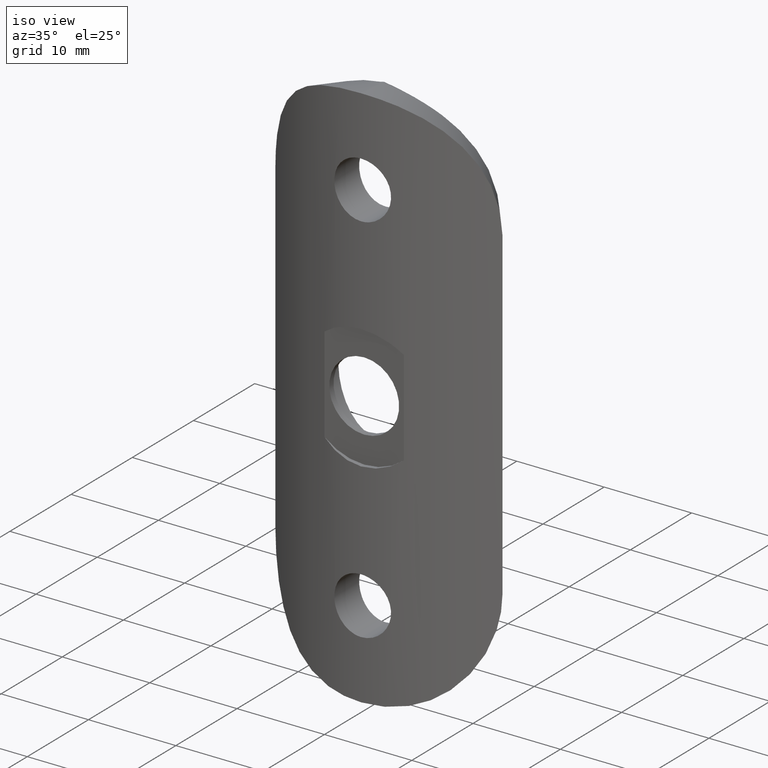
[diagram: clean part render]
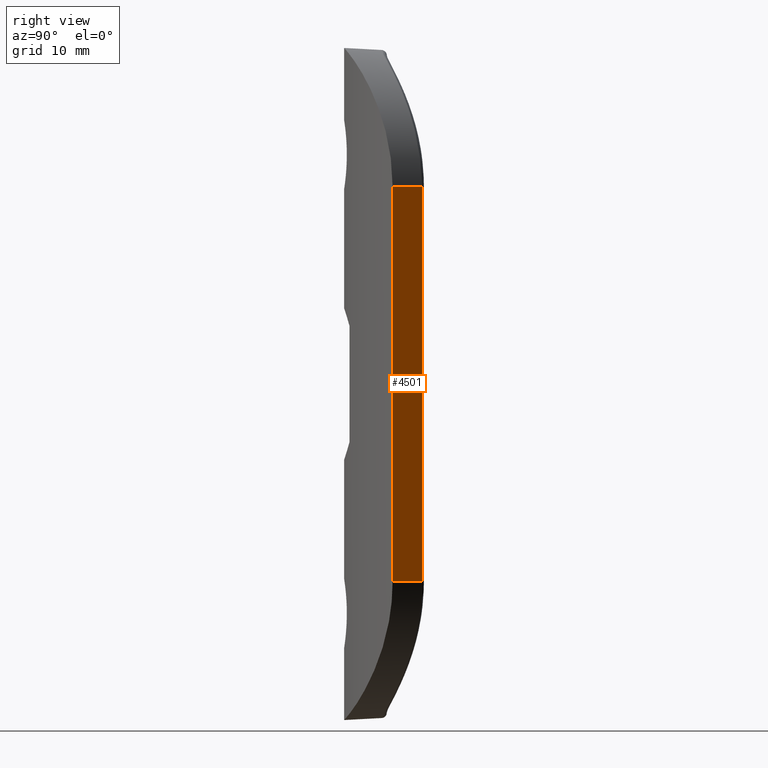
[diagram: tour spotlight — one face highlighted and labeled with its STEP entity id]
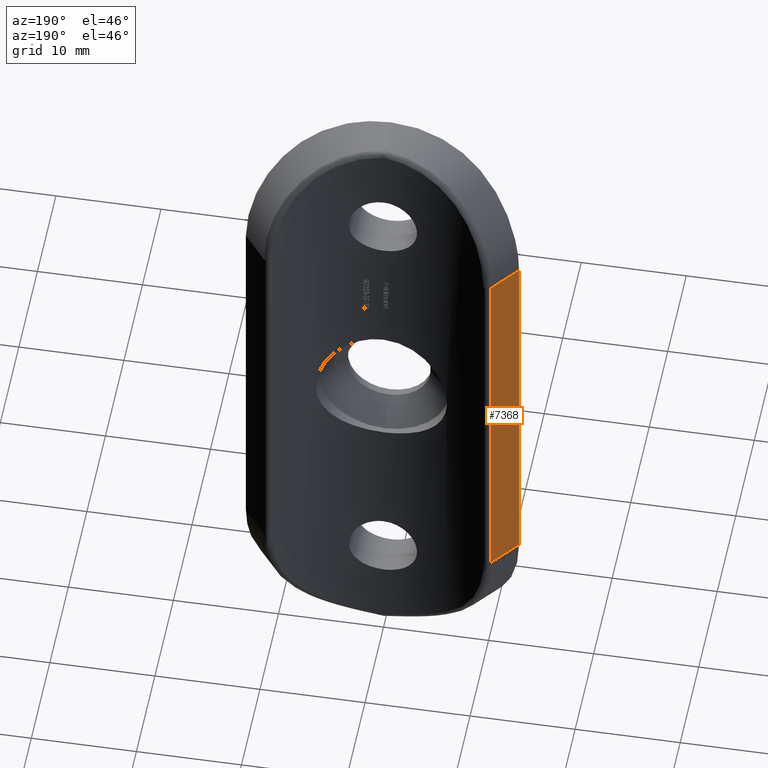
[diagram: tour spotlight — one face highlighted and labeled with its STEP entity id]
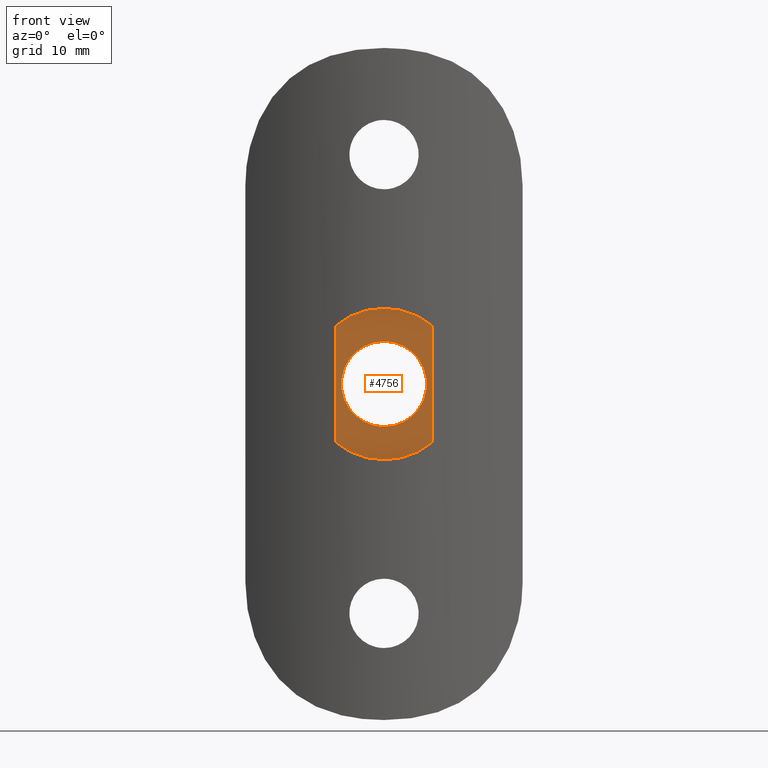
[diagram: tour spotlight — one face highlighted and labeled with its STEP entity id]
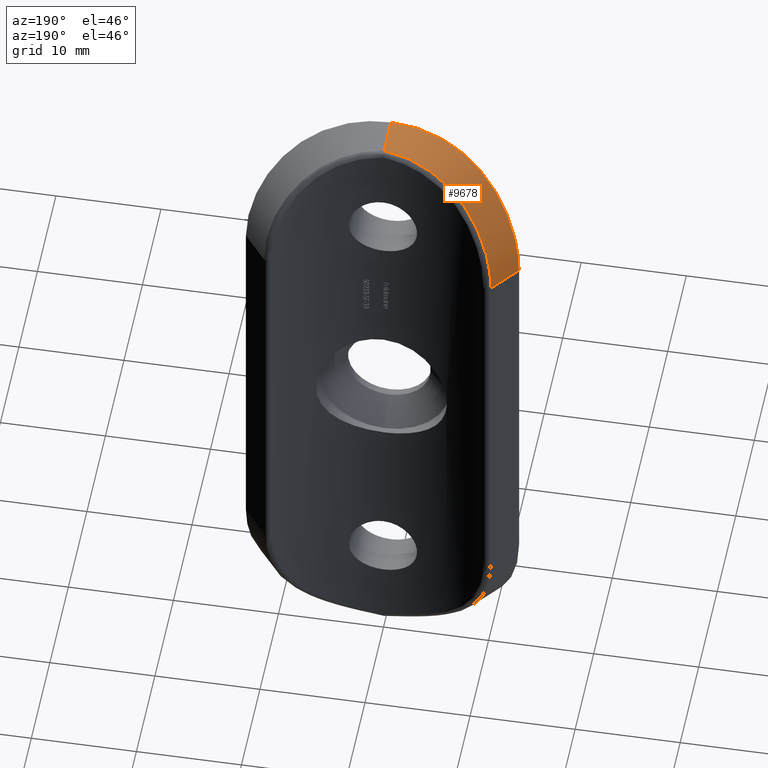
[diagram: tour spotlight — one face highlighted and labeled with its STEP entity id]
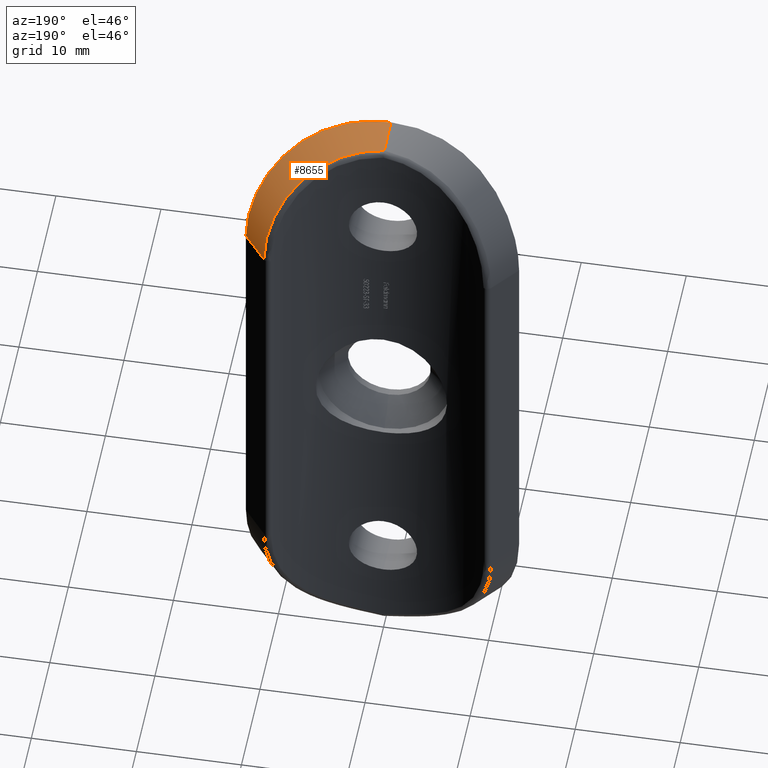
[diagram: tour spotlight — one face highlighted and labeled with its STEP entity id]
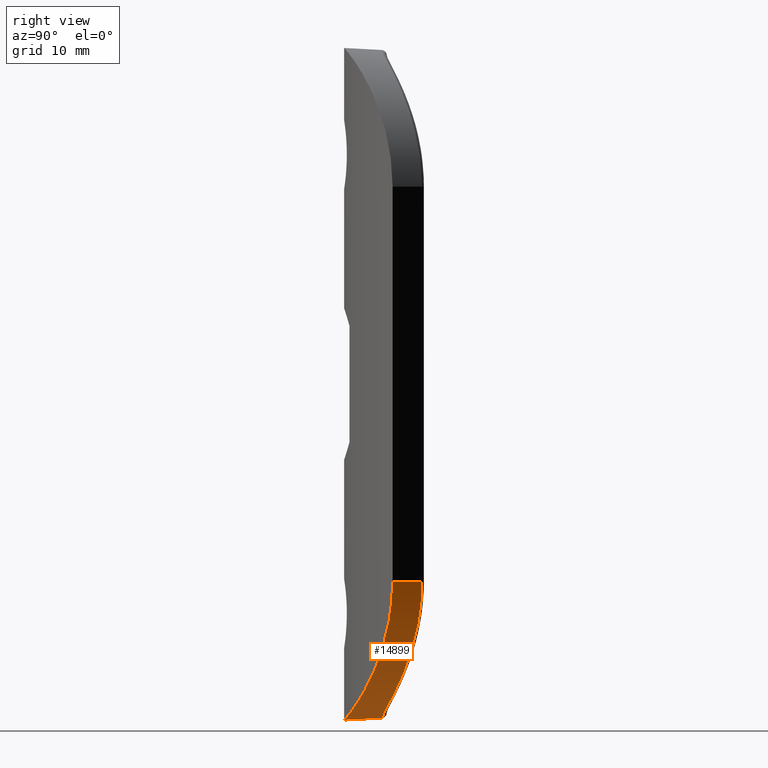
[diagram: tour spotlight — one face highlighted and labeled with its STEP entity id]
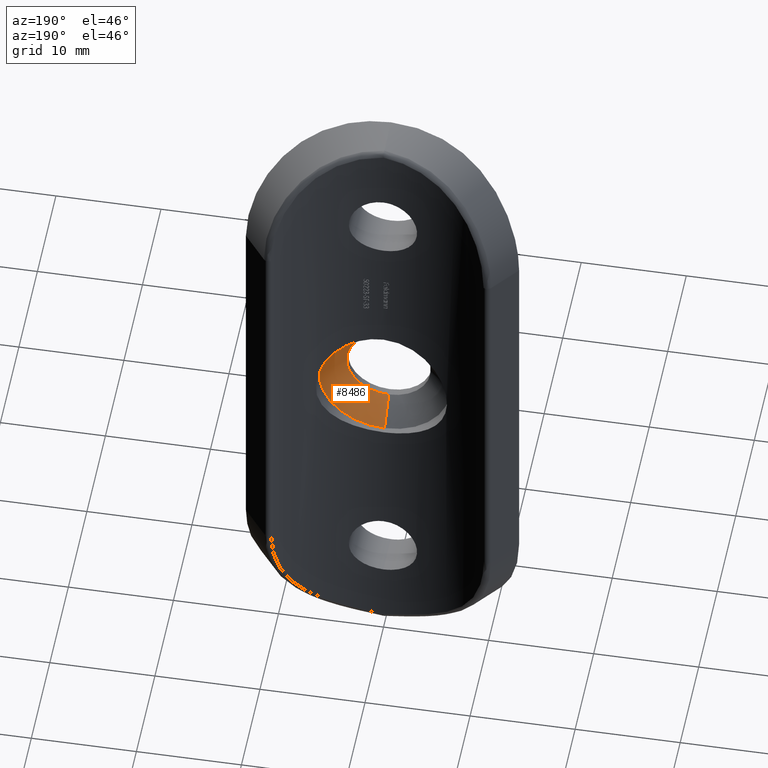
[diagram: tour spotlight — one face highlighted and labeled with its STEP entity id]
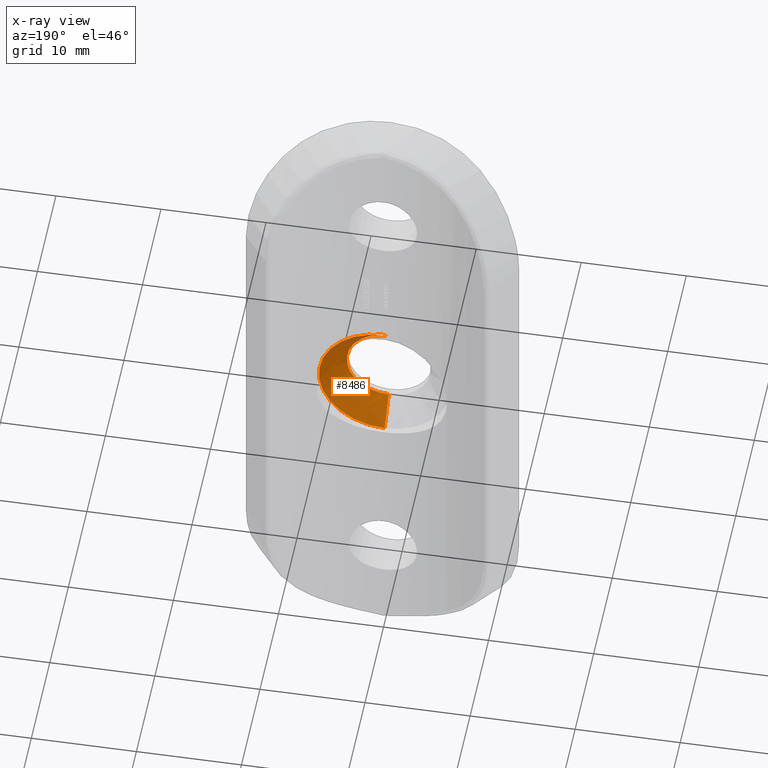
[diagram: x-ray of the same camera — body ghosted, this tour face saturated]
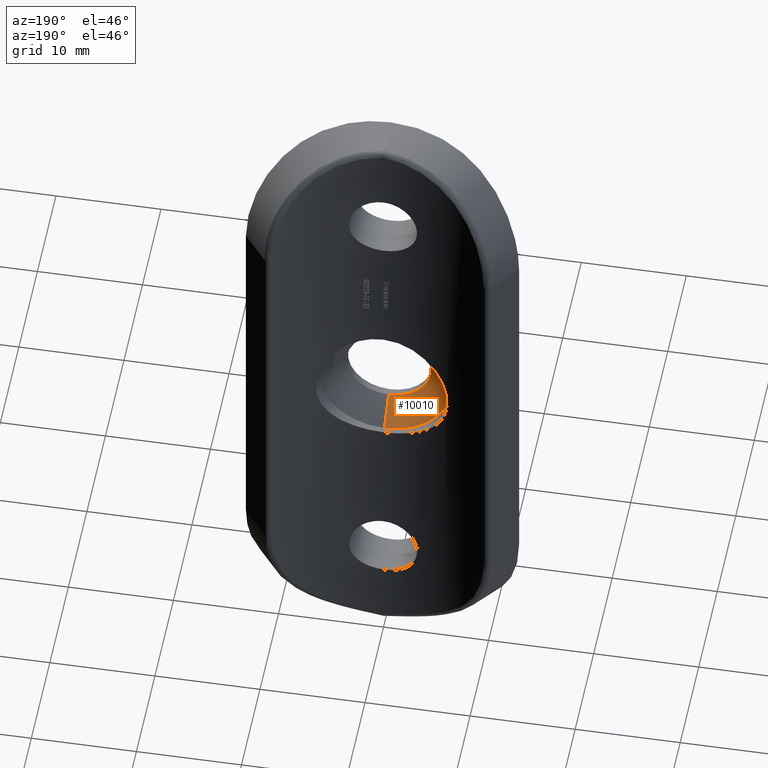
[diagram: tour spotlight — one face highlighted and labeled with its STEP entity id]
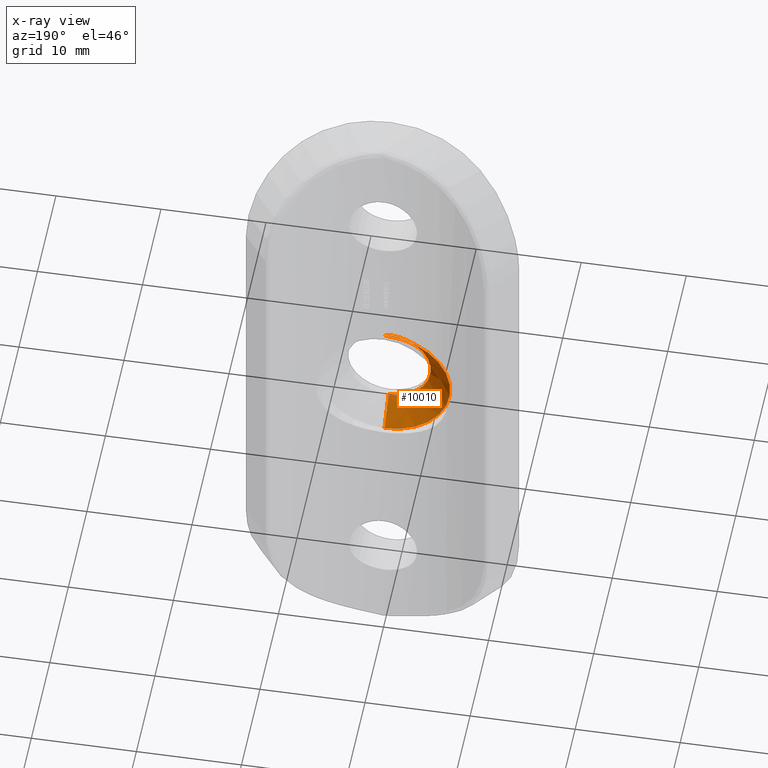
[diagram: x-ray of the same camera — body ghosted, this tour face saturated]
A machine part: a face-by-face anatomy tour. The part has 284 B-rep faces; the first image is the clean iso view, then the 8 largest visible faces are spotlighted one at a time (largest first), each with its STEP entity span.

Face 1 — right view, entity #4501. In plain terms, the highlighted planar face has unit normal (-0.7818, -0.6235, 0).
Definition (entity closure, byte-faithful):
#182 = DIRECTION ( 'NONE',  ( -0.0000000000000000000, -0.0000000000000000000, -1.000000000000000000 ) ) ;
#569 = ORIENTED_EDGE ( 'NONE', *, *, #9685, .T. ) ;
#581 = LINE ( 'NONE', #1220, #13260 ) ;
#1073 = CARTESIAN_POINT ( 'NONE',  ( 12.99999999999999800, 0.5490030979697434500, 18.50000000000000400 ) ) ;
#1220 = CARTESIAN_POINT ( 'NONE',  ( 12.99999999999999800, 0.5490030979697440000, -18.50000000000000400 ) ) ;
#1342 = EDGE_CURVE ( 'NONE', #7192, #10145, #15516, .T. ) ;
#1489 = AXIS2_PLACEMENT_3D ( 'NONE', #2347, #14695, #12166 ) ;
#2347 = CARTESIAN_POINT ( 'NONE',  ( 12.99999999999999800, 0.5490030979697440000, 31.50000000000000000 ) ) ;
#2606 = CARTESIAN_POINT ( 'NONE',  ( 12.99999999999999800, 0.5490030979697440000, 31.50000000000000000 ) ) ;
#3698 = LINE ( 'NONE', #2606, #11003 ) ;
#3941 = EDGE_CURVE ( 'NONE', #10145, #12209, #3698, .T. ) ;
#4122 = VECTOR ( 'NONE', #5332, 1000.000000000000000 ) ;
#4501 = ADVANCED_FACE ( 'NONE', ( #10043 ), #13284, .F. ) ;
#5332 = DIRECTION ( 'NONE',  ( 0.0000000000000000000, 0.0000000000000000000, 1.000000000000000000 ) ) ;
#5682 = EDGE_CURVE ( 'NONE', #12209, #9105, #581, .T. ) ;
#5894 = ORIENTED_EDGE ( 'NONE', *, *, #1342, .T. ) ;
#7192 = VERTEX_POINT ( 'NONE', #10628 ) ;
#9105 = VERTEX_POINT ( 'NONE', #10692 ) ;
#9292 = ORIENTED_EDGE ( 'NONE', *, *, #3941, .T. ) ;
#9684 = EDGE_LOOP ( 'NONE', ( #15234, #569, #5894, #9292 ) ) ;
#9685 = EDGE_CURVE ( 'NONE', #9105, #7192, #11427, .T. ) ;
#10022 = CARTESIAN_POINT ( 'NONE',  ( 12.99999999999999800, 0.5490030979697440000, 18.50000000000000400 ) ) ;
#10043 = FACE_OUTER_BOUND ( 'NONE', #9684, .T. ) ;
#10145 = VERTEX_POINT ( 'NONE', #10022 ) ;
#10628 = CARTESIAN_POINT ( 'NONE',  ( 10.81325278673134900, 3.291015370970933300, 18.50000000000000400 ) ) ;
#10692 = CARTESIAN_POINT ( 'NONE',  ( 10.81325278673134900, 3.291015370970933800, -18.50000000000000400 ) ) ;
#10997 = DIRECTION ( 'NONE',  ( -0.6235011990407680600, 0.7818223933827454000, 0.0000000000000000000 ) ) ;
#11003 = VECTOR ( 'NONE', #182, 1000.000000000000000 ) ;
#11414 = CARTESIAN_POINT ( 'NONE',  ( 10.81325278673134900, 3.291015370970932900, 18.50000000000000400 ) ) ;
#11427 = LINE ( 'NONE', #11414, #4122 ) ;
#12166 = DIRECTION ( 'NONE',  ( 0.6235011990407680600, -0.7818223933827454000, 0.0000000000000000000 ) ) ;
#12209 = VERTEX_POINT ( 'NONE', #13475 ) ;
#13260 = VECTOR ( 'NONE', #10997, 1000.000000000000100 ) ;
#13284 = PLANE ( 'NONE',  #1489 ) ;
#13386 = VECTOR ( 'NONE', #14555, 1000.000000000000100 ) ;
#13475 = CARTESIAN_POINT ( 'NONE',  ( 12.99999999999999800, 0.5490030979697440000, -18.50000000000000400 ) ) ;
#14555 = DIRECTION ( 'NONE',  ( 0.6235011990407680600, -0.7818223933827454000, -0.0000000000000000000 ) ) ;
#14695 = DIRECTION ( 'NONE',  ( -0.7818223933827455100, -0.6235011990407681700, 0.0000000000000000000 ) ) ;
#15234 = ORIENTED_EDGE ( 'NONE', *, *, #5682, .T. ) ;
#15516 = LINE ( 'NONE', #1073, #13386 ) ;

Face 2 — auxiliary view, entity #7368. In plain terms, the highlighted planar face has unit normal (-0.7818, 0.6235, 0).
Definition (entity closure, byte-faithful):
#471 = AXIS2_PLACEMENT_3D ( 'NONE', #14305, #10510, #3146 ) ;
#500 = VERTEX_POINT ( 'NONE', #15882 ) ;
#2212 = EDGE_CURVE ( 'NONE', #13362, #8193, #10725, .T. ) ;
#2842 = ORIENTED_EDGE ( 'NONE', *, *, #3919, .F. ) ;
#2914 = CARTESIAN_POINT ( 'NONE',  ( -13.00000000000000400, 0.5490030979697462200, -18.50000000000000400 ) ) ;
#3146 = DIRECTION ( 'NONE',  ( -0.6235011990407675100, -0.7818223933827459500, 0.0000000000000000000 ) ) ;
#3387 = ORIENTED_EDGE ( 'NONE', *, *, #5304, .T. ) ;
#3487 = VECTOR ( 'NONE', #5169, 1000.000000000000000 ) ;
#3655 = CARTESIAN_POINT ( 'NONE',  ( -12.99999999999999800, 0.5490030979697392300, 18.50000000000000400 ) ) ;
#3806 = VECTOR ( 'NONE', #12178, 1000.000000000000000 ) ;
#3919 = EDGE_CURVE ( 'NONE', #12608, #8193, #4466, .T. ) ;
#4466 = LINE ( 'NONE', #14903, #3487 ) ;
#4568 = EDGE_LOOP ( 'NONE', ( #3387, #12804, #8922, #2842 ) ) ;
#4595 = FACE_OUTER_BOUND ( 'NONE', #4568, .T. ) ;
#4978 = CARTESIAN_POINT ( 'NONE',  ( -13.00000000000000400, 0.5490030979697462200, 18.50000000000000400 ) ) ;
#5169 = DIRECTION ( 'NONE',  ( -0.0000000000000000000, -0.0000000000000000000, -1.000000000000000000 ) ) ;
#5304 = EDGE_CURVE ( 'NONE', #12608, #500, #13835, .T. ) ;
#6523 = VECTOR ( 'NONE', #8701, 1000.000000000000000 ) ;
#7368 = ADVANCED_FACE ( 'NONE', ( #4595 ), #11780, .T. ) ;
#8193 = VERTEX_POINT ( 'NONE', #2914 ) ;
#8586 = CARTESIAN_POINT ( 'NONE',  ( -12.99999999999999500, 0.5490030979697430000, -18.50000000000000400 ) ) ;
#8701 = DIRECTION ( 'NONE',  ( 0.6235011990407675100, 0.7818223933827459500, -0.0000000000000000000 ) ) ;
#8922 = ORIENTED_EDGE ( 'NONE', *, *, #2212, .T. ) ;
#9778 = EDGE_CURVE ( 'NONE', #500, #13362, #11237, .T. ) ;
#10510 = DIRECTION ( 'NONE',  ( -0.7818223933827459500, 0.6235011990407675100, 0.0000000000000000000 ) ) ;
#10725 = LINE ( 'NONE', #8586, #3806 ) ;
#11046 = VECTOR ( 'NONE', #13108, 1000.000000000000000 ) ;
#11237 = LINE ( 'NONE', #13214, #11046 ) ;
#11780 = PLANE ( 'NONE',  #471 ) ;
#12178 = DIRECTION ( 'NONE',  ( -0.6235011990407675100, -0.7818223933827459500, -0.0000000000000000000 ) ) ;
#12608 = VERTEX_POINT ( 'NONE', #4978 ) ;
#12804 = ORIENTED_EDGE ( 'NONE', *, *, #9778, .T. ) ;
#13108 = DIRECTION ( 'NONE',  ( 0.0000000000000000000, 0.0000000000000000000, -1.000000000000000000 ) ) ;
#13214 = CARTESIAN_POINT ( 'NONE',  ( -10.81325278673135100, 3.291015370970932000, 31.50000000000000000 ) ) ;
#13362 = VERTEX_POINT ( 'NONE', #13709 ) ;
#13709 = CARTESIAN_POINT ( 'NONE',  ( -10.81325278673134900, 3.291015370970931600, -18.50000000000000400 ) ) ;
#13835 = LINE ( 'NONE', #3655, #6523 ) ;
#14305 = CARTESIAN_POINT ( 'NONE',  ( -12.99999999999999800, 0.5490030979697392300, 31.50000000000000000 ) ) ;
#14903 = CARTESIAN_POINT ( 'NONE',  ( -13.00000000000000400, 0.5490030979697462200, 31.50000000000000000 ) ) ;
#15882 = CARTESIAN_POINT ( 'NONE',  ( -10.81325278673135100, 3.291015370970932000, 18.50000000000000400 ) ) ;

Face 3 — front view, entity #4756. In plain terms, the highlighted planar face has unit normal (0, 1, 0).
Definition (entity closure, byte-faithful):
#129 = EDGE_LOOP ( 'NONE', ( #10712, #13571, #9495, #447, #5036 ) ) ;
#447 = ORIENTED_EDGE ( 'NONE', *, *, #3337, .T. ) ;
#616 = CARTESIAN_POINT ( 'NONE',  ( 4.538722287164086200, -3.500000000000000000, -5.459853477887480500 ) ) ;
#773 = CARTESIAN_POINT ( 'NONE',  ( 4.898587196589411800E-016, -3.500000000000000400, 3.999999999999999100 ) ) ;
#944 = DIRECTION ( 'NONE',  ( -0.0000000000000000000, -1.000000000000000000, -0.0000000000000000000 ) ) ;
#970 = AXIS2_PLACEMENT_3D ( 'NONE', #10508, #3144, #11731 ) ;
#1493 = CARTESIAN_POINT ( 'NONE',  ( 4.538722287164086200, -3.499999999999999600, 31.50000000000000000 ) ) ;
#1517 = CIRCLE ( 'NONE', #3262, 3.999999999999999100 ) ;
#1815 = AXIS2_PLACEMENT_3D ( 'NONE', #12952, #8064, #13063 ) ;
#1904 = PLANE ( 'NONE',  #970 ) ;
#2177 = VERTEX_POINT ( 'NONE', #14851 ) ;
#2353 = ORIENTED_EDGE ( 'NONE', *, *, #7320, .F. ) ;
#2693 = CARTESIAN_POINT ( 'NONE',  ( 0.0000000000000000000, -3.500000000000000000, -7.100000000000000500 ) ) ;
#2857 = VECTOR ( 'NONE', #10748, 1000.000000000000000 ) ;
#3144 = DIRECTION ( 'NONE',  ( 0.0000000000000000000, 1.000000000000000000, 0.0000000000000000000 ) ) ;
#3262 = AXIS2_PLACEMENT_3D ( 'NONE', #15238, #9069, #8952 ) ;
#3337 = EDGE_CURVE ( 'NONE', #14454, #11517, #14345, .T. ) ;
#3435 = EDGE_LOOP ( 'NONE', ( #13124, #2353 ) ) ;
#3488 = DIRECTION ( 'NONE',  ( 0.0000000000000000000, 0.0000000000000000000, -1.000000000000000000 ) ) ;
#3695 = VERTEX_POINT ( 'NONE', #773 ) ;
#4124 = DIRECTION ( 'NONE',  ( -0.0000000000000000000, -0.0000000000000000000, -1.000000000000000000 ) ) ;
#4614 = DIRECTION ( 'NONE',  ( 0.0000000000000000000, 0.0000000000000000000, -1.000000000000000000 ) ) ;
#4746 = VERTEX_POINT ( 'NONE', #15282 ) ;
#4756 = ADVANCED_FACE ( 'NONE', ( #13070, #9834 ), #1904, .F. ) ;
#5036 = ORIENTED_EDGE ( 'NONE', *, *, #5435, .F. ) ;
#5435 = EDGE_CURVE ( 'NONE', #14832, #11517, #6902, .T. ) ;
#5524 = LINE ( 'NONE', #12077, #2857 ) ;
#5583 = EDGE_CURVE ( 'NONE', #4746, #14454, #11730, .T. ) ;
#5758 = CARTESIAN_POINT ( 'NONE',  ( 0.0000000000000000000, -3.500000000000000000, 0.0000000000000000000 ) ) ;
#5827 = DIRECTION ( 'NONE',  ( -0.0000000000000000000, -1.000000000000000000, -0.0000000000000000000 ) ) ;
#6902 = LINE ( 'NONE', #1493, #7090 ) ;
#7059 = AXIS2_PLACEMENT_3D ( 'NONE', #8291, #11896, #9490 ) ;
#7090 = VECTOR ( 'NONE', #4124, 1000.000000000000000 ) ;
#7320 = EDGE_CURVE ( 'NONE', #3695, #12240, #1517, .T. ) ;
#7426 = EDGE_CURVE ( 'NONE', #12240, #3695, #8031, .T. ) ;
#8031 = CIRCLE ( 'NONE', #1815, 3.999999999999999100 ) ;
#8064 = DIRECTION ( 'NONE',  ( -0.0000000000000000000, -1.000000000000000000, -0.0000000000000000000 ) ) ;
#8280 = AXIS2_PLACEMENT_3D ( 'NONE', #5758, #944, #4614 ) ;
#8291 = CARTESIAN_POINT ( 'NONE',  ( 0.0000000000000000000, -3.500000000000000000, 0.0000000000000000000 ) ) ;
#8419 = CARTESIAN_POINT ( 'NONE',  ( 0.0000000000000000000, -3.500000000000000000, 0.0000000000000000000 ) ) ;
#8544 = CARTESIAN_POINT ( 'NONE',  ( 0.0000000000000000000, -3.500000000000000400, -3.999999999999999100 ) ) ;
#8952 = DIRECTION ( 'NONE',  ( 0.0000000000000000000, 0.0000000000000000000, -1.000000000000000000 ) ) ;
#8972 = EDGE_CURVE ( 'NONE', #4746, #2177, #5524, .T. ) ;
#9069 = DIRECTION ( 'NONE',  ( -0.0000000000000000000, -1.000000000000000000, -0.0000000000000000000 ) ) ;
#9490 = DIRECTION ( 'NONE',  ( 0.0000000000000000000, 0.0000000000000000000, -1.000000000000000000 ) ) ;
#9495 = ORIENTED_EDGE ( 'NONE', *, *, #5583, .T. ) ;
#9834 = FACE_OUTER_BOUND ( 'NONE', #129, .T. ) ;
#10508 = CARTESIAN_POINT ( 'NONE',  ( 0.0000000000000000000, -3.500000000000000400, -4.896396907999052200E-016 ) ) ;
#10712 = ORIENTED_EDGE ( 'NONE', *, *, #11647, .T. ) ;
#10748 = DIRECTION ( 'NONE',  ( 0.0000000000000000000, 0.0000000000000000000, 1.000000000000000000 ) ) ;
#11517 = VERTEX_POINT ( 'NONE', #616 ) ;
#11647 = EDGE_CURVE ( 'NONE', #14832, #2177, #13027, .T. ) ;
#11730 = CIRCLE ( 'NONE', #8280, 7.100000000000000500 ) ;
#11731 = DIRECTION ( 'NONE',  ( 0.0000000000000000000, -0.0000000000000000000, 1.000000000000000000 ) ) ;
#11896 = DIRECTION ( 'NONE',  ( -0.0000000000000000000, -1.000000000000000000, -0.0000000000000000000 ) ) ;
#12077 = CARTESIAN_POINT ( 'NONE',  ( -4.538722287164089800, -3.499999999999999600, 31.50000000000000000 ) ) ;
#12240 = VERTEX_POINT ( 'NONE', #8544 ) ;
#12952 = CARTESIAN_POINT ( 'NONE',  ( 0.0000000000000000000, -3.500000000000000400, 0.0000000000000000000 ) ) ;
#13027 = CIRCLE ( 'NONE', #7059, 7.100000000000000500 ) ;
#13063 = DIRECTION ( 'NONE',  ( 0.0000000000000000000, 0.0000000000000000000, -1.000000000000000000 ) ) ;
#13070 = FACE_BOUND ( 'NONE', #3435, .T. ) ;
#13124 = ORIENTED_EDGE ( 'NONE', *, *, #7426, .F. ) ;
#13571 = ORIENTED_EDGE ( 'NONE', *, *, #8972, .F. ) ;
#14345 = CIRCLE ( 'NONE', #14986, 7.100000000000000500 ) ;
#14454 = VERTEX_POINT ( 'NONE', #2693 ) ;
#14832 = VERTEX_POINT ( 'NONE', #15833 ) ;
#14851 = CARTESIAN_POINT ( 'NONE',  ( -4.538722287164089800, -3.500000000000000000, 5.459853477887477900 ) ) ;
#14986 = AXIS2_PLACEMENT_3D ( 'NONE', #8419, #5827, #3488 ) ;
#15238 = CARTESIAN_POINT ( 'NONE',  ( 0.0000000000000000000, -3.500000000000000400, 0.0000000000000000000 ) ) ;
#15282 = CARTESIAN_POINT ( 'NONE',  ( -4.538722287164089800, -3.500000000000000000, -5.459853477887477900 ) ) ;
#15833 = CARTESIAN_POINT ( 'NONE',  ( 4.538722287164086200, -3.500000000000000000, 5.459853477887480500 ) ) ;

Face 4 — auxiliary view, entity #9678. In plain terms, the highlighted cylindrical surface (partial cylindrical patch) has radius 13 mm, axis along (0.6235, 0.7818, -0).
Definition (entity closure, byte-faithful):
#105 = CARTESIAN_POINT ( 'NONE',  ( -4.385795527101139500, -3.538186985999252100, 30.96376055406732400 ) ) ;
#217 = CARTESIAN_POINT ( 'NONE',  ( -8.233914946018360900, -2.308684805869031000, 29.13305792003740900 ) ) ;
#358 = CARTESIAN_POINT ( 'NONE',  ( -1.591876104860657600E-015, -2.808314965960470900, 31.50000000000000700 ) ) ;
#500 = VERTEX_POINT ( 'NONE', #15882 ) ;
#1026 = CARTESIAN_POINT ( 'NONE',  ( -7.522032440449962100, 1.297400226740585700, 27.73417490612284900 ) ) ;
#1451 = CARTESIAN_POINT ( 'NONE',  ( -12.40799003955487700, 0.09343085567044492900, 22.86586192898707600 ) ) ;
#1558 = CARTESIAN_POINT ( 'NONE',  ( -7.063075658817594100E-015, -4.000000000000000000, 31.50000000000000000 ) ) ;
#2156 = CARTESIAN_POINT ( 'NONE',  ( -10.51140021667998600, 3.068001273967808200, 21.62516512265614900 ) ) ;
#2209 = CARTESIAN_POINT ( 'NONE',  ( -0.7868395231680609400, -0.4217079465087668100, 31.18895971245693100 ) ) ;
#2320 = CARTESIAN_POINT ( 'NONE',  ( -6.112986192635482900, 0.7093041458289913700, 28.96982297826615100 ) ) ;
#2594 = CARTESIAN_POINT ( 'NONE',  ( -8.891556378372593300, -2.012470251775695800, 28.60455263522121400 ) ) ;
#2644 = CARTESIAN_POINT ( 'NONE',  ( -9.786876122053366000, -1.563244096240058200, 27.72428910285795900 ) ) ;
#2755 = CARTESIAN_POINT ( 'NONE',  ( -13.00000000000000000, 0.5490030979697394500, 19.40065990040951500 ) ) ;
#3507 = CARTESIAN_POINT ( 'NONE',  ( -10.75540627910053200, 3.246948536607695300, 20.08203606642703300 ) ) ;
#3655 = CARTESIAN_POINT ( 'NONE',  ( -12.99999999999999800, 0.5490030979697392300, 18.50000000000000400 ) ) ;
#3694 = CARTESIAN_POINT ( 'NONE',  ( -2.836308886024300000, -7.556512489560237400, 18.50000000000000400 ) ) ;
#3765 = CARTESIAN_POINT ( 'NONE',  ( -7.063075658817594100E-015, -4.000000000000000000, 31.50000000000000000 ) ) ;
#3880 = ORIENTED_EDGE ( 'NONE', *, *, #12269, .F. ) ;
#3933 = CARTESIAN_POINT ( 'NONE',  ( -12.71381069657483900, 0.3245745940752577400, 21.58540070414690600 ) ) ;
#3984 = CARTESIAN_POINT ( 'NONE',  ( -13.00000000000000400, 0.5490030979697462200, 18.50000000000000400 ) ) ;
#4172 = EDGE_CURVE ( 'NONE', #7157, #500, #4354, .T. ) ;
#4354 = B_SPLINE_CURVE_WITH_KNOTS ( 'NONE', 3,
 ( #11935, #15766, #2209, #9476, #11982, #5893, #10865, #7016, #13102, #14505, #2320, #4642, #1026, #8371, #5948, #9691, #9633, #14455, #4590, #7069, #12091, #2156, #13207, #3507, #14404, #15653 ),
 .UNSPECIFIED., .F., .F.,
 ( 4, 2, 2, 2, 2, 2, 2, 2, 2, 2, 2, 2, 4 ),
 ( 2.845133323627126100E-019, 0.001192473253158539800, 0.002384946506317079600, 0.004769893012634158400, 0.005962366265792695300, 0.007154839518951230600, 0.009539786025268301100, 0.01073225927842683300, 0.01192473253158536500, 0.01430967903790242000, 0.01550215229106094300, 0.01669462554421946600, 0.01907957205053651900 ),
 .UNSPECIFIED. ) ;
#4536 = B_SPLINE_CURVE_WITH_KNOTS ( 'NONE', 3,
 ( #1558, #11290, #14944, #13738, #5054, #105, #10118, #14839, #13642, #12562, #217, #2594, #8823, #2644, #7550, #14999, #12352, #8715, #6267, #6422, #1451, #10069, #3933, #10019, #2755, #3984 ),
 .UNSPECIFIED., .F., .F.,
 ( 4, 2, 2, 2, 2, 2, 2, 2, 2, 2, 2, 2, 4 ),
 ( 1.359853819285665600E-017, 0.002665498496543532100, 0.003998247744815293600, 0.005330996993087053700, 0.007996495489630575000, 0.009329244737902336900, 0.01066199398617409900, 0.01199474323444586100, 0.01332749248271762100, 0.01599299097926114600, 0.01732574022753291900, 0.01865848947580468400, 0.02132398797234821100 ),
 .UNSPECIFIED. ) ;
#4590 = CARTESIAN_POINT ( 'NONE',  ( -9.883876483705217100, 2.631715138342525700, 23.87722691772919200 ) ) ;
#4642 = CARTESIAN_POINT ( 'NONE',  ( -6.993355885137084700, 1.055335429611858900, 28.26161717247504500 ) ) ;
#4978 = CARTESIAN_POINT ( 'NONE',  ( -13.00000000000000400, 0.5490030979697462200, 18.50000000000000400 ) ) ;
#5054 = CARTESIAN_POINT ( 'NONE',  ( -3.527898760406122900, -3.704009373305601600, 31.16888347598757000 ) ) ;
#5304 = EDGE_CURVE ( 'NONE', #12608, #500, #13835, .T. ) ;
#5893 = CARTESIAN_POINT ( 'NONE',  ( -3.081347760467123600, -0.1503958083531978000, 30.59770263791105900 ) ) ;
#5948 = CARTESIAN_POINT ( 'NONE',  ( -8.459104589948713800, 1.777631885677609200, 26.54932674287762900 ) ) ;
#5982 =( BOUNDED_CURVE ( )  B_SPLINE_CURVE ( 3, ( #12595, #358, #11481, #10262 ),
 .UNSPECIFIED., .F., .F. ) 
 B_SPLINE_CURVE_WITH_KNOTS ( ( 4, 4 ),
 ( 4.712388980384689700, 4.883644841163514300 ),
 .UNSPECIFIED. ) 
 CURVE ( )  GEOMETRIC_REPRESENTATION_ITEM ( )  RATIONAL_B_SPLINE_CURVE ( ( 1.000000000000000000, 0.9975574454895068700, 0.9975574454895068700, 1.000000000000000000 ) ) 
 REPRESENTATION_ITEM ( '' )  );
#6267 = CARTESIAN_POINT ( 'NONE',  ( -11.84275810155620900, -0.3139149183250962100, 24.51925199788497900 ) ) ;
#6422 = CARTESIAN_POINT ( 'NONE',  ( -12.27984362872066800, -0.001113884489595342900, 23.28916457201297500 ) ) ;
#6523 = VECTOR ( 'NONE', #8701, 1000.000000000000000 ) ;
#7016 = CARTESIAN_POINT ( 'NONE',  ( -4.825879269697544800, 0.2807642902636742800, 29.79759421073650600 ) ) ;
#7069 = CARTESIAN_POINT ( 'NONE',  ( -10.23505599943294300, 2.871902928979813000, 22.76566226678346900 ) ) ;
#7157 = VERTEX_POINT ( 'NONE', #11910 ) ;
#7550 = CARTESIAN_POINT ( 'NONE',  ( -10.06190585867899200, -1.413865923257870100, 27.40758551223913400 ) ) ;
#7792 = DIRECTION ( 'NONE',  ( 0.6235011990407675100, 0.7818223933827459500, -0.0000000000000000000 ) ) ;
#8328 = FACE_OUTER_BOUND ( 'NONE', #15871, .T. ) ;
#8371 = CARTESIAN_POINT ( 'NONE',  ( -8.234141121959526200, 1.657444517457095100, 26.85767709123361200 ) ) ;
#8701 = DIRECTION ( 'NONE',  ( 0.6235011990407675100, 0.7818223933827459500, -0.0000000000000000000 ) ) ;
#8715 = CARTESIAN_POINT ( 'NONE',  ( -11.48104205251211600, -0.5620101394519403400, 25.29319581707268900 ) ) ;
#8823 = CARTESIAN_POINT ( 'NONE',  ( -9.201700468806528500, -1.862541539259263000, 28.32277410812674000 ) ) ;
#9476 = CARTESIAN_POINT ( 'NONE',  ( -1.562607954736173100, -0.3590787525489972400, 31.02669542825151800 ) ) ;
#9633 = CARTESIAN_POINT ( 'NONE',  ( -9.065984262955375100, 2.121253853727200300, 25.58827309608811600 ) ) ;
#9678 = ADVANCED_FACE ( 'NONE', ( #8328 ), #11989, .T. ) ;
#9691 = CARTESIAN_POINT ( 'NONE',  ( -8.874810467235942500, 2.009469455502230800, 25.91466500015651400 ) ) ;
#10019 = CARTESIAN_POINT ( 'NONE',  ( -12.92797526336122800, 0.4908244495508090600, 20.28429128531304200 ) ) ;
#10069 = CARTESIAN_POINT ( 'NONE',  ( -12.62452858097529800, 0.2559617808524896100, 22.01501381968778800 ) ) ;
#10118 = CARTESIAN_POINT ( 'NONE',  ( -4.808879816216545100, -3.442244404435216100, 30.84088086085273900 ) ) ;
#10206 = DIRECTION ( 'NONE',  ( -0.7818223933827460600, 0.6235011990407675100, 0.0000000000000000000 ) ) ;
#10262 = CARTESIAN_POINT ( 'NONE',  ( -2.597937439898376000E-015, -0.4467435717366383700, 31.30982976342494000 ) ) ;
#10791 = AXIS2_PLACEMENT_3D ( 'NONE', #3694, #7792, #10206 ) ;
#10865 = CARTESIAN_POINT ( 'NONE',  ( -3.801099899317010900, 0.002709856565700170800, 30.31731089620751300 ) ) ;
#10996 = ORIENTED_EDGE ( 'NONE', *, *, #5304, .F. ) ;
#11238 = EDGE_CURVE ( 'NONE', #14383, #7157, #5982, .T. ) ;
#11290 = CARTESIAN_POINT ( 'NONE',  ( -0.8994894225556405700, -3.999999999999999100, 31.50000000000000700 ) ) ;
#11481 = CARTESIAN_POINT ( 'NONE',  ( -2.097690005355738400E-015, -1.620996065403401000, 31.43645470830279400 ) ) ;
#11688 = ORIENTED_EDGE ( 'NONE', *, *, #11238, .T. ) ;
#11910 = CARTESIAN_POINT ( 'NONE',  ( -2.597937439898376000E-015, -0.4467435717366383700, 31.30982976342494000 ) ) ;
#11935 = CARTESIAN_POINT ( 'NONE',  ( -2.597937439898376000E-015, -0.4467435717366383700, 31.30982976342494000 ) ) ;
#11982 = CARTESIAN_POINT ( 'NONE',  ( -1.948181270716177900, -0.3152336200101892300, 30.93077029224297500 ) ) ;
#11989 = CYLINDRICAL_SURFACE ( 'NONE', #10791, 13.00000000000000000 ) ;
#12091 = CARTESIAN_POINT ( 'NONE',  ( -10.33766963107329700, 2.944024006175847600, 22.38621379679843700 ) ) ;
#12269 = EDGE_CURVE ( 'NONE', #14383, #12608, #4536, .T. ) ;
#12352 = CARTESIAN_POINT ( 'NONE',  ( -10.81994887173729200, -0.9746651396309035100, 26.38466664456145200 ) ) ;
#12407 = ORIENTED_EDGE ( 'NONE', *, *, #4172, .T. ) ;
#12562 = CARTESIAN_POINT ( 'NONE',  ( -7.884269990551422900, -2.455700170826961700, 29.38083181686783300 ) ) ;
#12595 = CARTESIAN_POINT ( 'NONE',  ( -7.063075658817594100E-015, -4.000000000000000000, 31.50000000000000000 ) ) ;
#12608 = VERTEX_POINT ( 'NONE', #4978 ) ;
#13102 = CARTESIAN_POINT ( 'NONE',  ( -5.158307885413866400, 0.3815381655267475700, 29.60779361770762100 ) ) ;
#13207 = CARTESIAN_POINT ( 'NONE',  ( -10.58318446594495500, 3.120313476255776900, 21.24161290630414800 ) ) ;
#13642 = CARTESIAN_POINT ( 'NONE',  ( -6.803295188096638100, -2.873964207601184200, 30.05386606140802300 ) ) ;
#13738 = CARTESIAN_POINT ( 'NONE',  ( -3.095138953090901300, -3.773678690184442400, 31.25096211381765000 ) ) ;
#13835 = LINE ( 'NONE', #3655, #6523 ) ;
#14383 = VERTEX_POINT ( 'NONE', #3765 ) ;
#14404 = CARTESIAN_POINT ( 'NONE',  ( -10.81325278673134700, 3.291015370970928000, 19.29716980078726600 ) ) ;
#14455 = CARTESIAN_POINT ( 'NONE',  ( -9.593368464452533200, 2.440443406201452600, 24.58266391671368500 ) ) ;
#14505 = CARTESIAN_POINT ( 'NONE',  ( -5.804277073753969100, 0.5966063912151944300, 29.19240259793340200 ) ) ;
#14839 = CARTESIAN_POINT ( 'NONE',  ( -6.034341321828060600, -3.125516439788664800, 30.41530755885264300 ) ) ;
#14944 = CARTESIAN_POINT ( 'NONE',  ( -1.786227388186503200, -3.941967755297396200, 31.44332252597126100 ) ) ;
#14999 = CARTESIAN_POINT ( 'NONE',  ( -10.57815397570245600, -1.119791496786739100, 26.73848721398386600 ) ) ;
#15653 = CARTESIAN_POINT ( 'NONE',  ( -10.81325278673135100, 3.291015370970932000, 18.50000000000000400 ) ) ;
#15766 = CARTESIAN_POINT ( 'NONE',  ( -0.3951719370108162700, -0.4407258731421472800, 31.25574721689305200 ) ) ;
#15871 = EDGE_LOOP ( 'NONE', ( #11688, #12407, #10996, #3880 ) ) ;
#15882 = CARTESIAN_POINT ( 'NONE',  ( -10.81325278673135100, 3.291015370970932000, 18.50000000000000400 ) ) ;

Face 5 — auxiliary view, entity #8655. In plain terms, the highlighted cylindrical surface (partial cylindrical patch) has radius 13 mm, axis along (0.6235, -0.7818, 0).
Definition (entity closure, byte-faithful):
#317 = CARTESIAN_POINT ( 'NONE',  ( 8.234141121959519100, 1.657444517457094000, 26.85767709123360800 ) ) ;
#358 = CARTESIAN_POINT ( 'NONE',  ( -1.591876104860657600E-015, -2.808314965960470900, 31.50000000000000700 ) ) ;
#384 = CARTESIAN_POINT ( 'NONE',  ( 0.8995211615377171100, -4.000000000000000000, 31.49999999999999300 ) ) ;
#538 = CYLINDRICAL_SURFACE ( 'NONE', #13120, 13.00000000000000000 ) ;
#544 = CARTESIAN_POINT ( 'NONE',  ( 11.84133742178742400, -0.3148745535422774500, 24.52201016392537600 ) ) ;
#1073 = CARTESIAN_POINT ( 'NONE',  ( 12.99999999999999800, 0.5490030979697434500, 18.50000000000000400 ) ) ;
#1080 = CARTESIAN_POINT ( 'NONE',  ( 10.75540627910053000, 3.246948536607697600, 20.08203606642702300 ) ) ;
#1147 = CARTESIAN_POINT ( 'NONE',  ( 10.33766963107329500, 2.944024006175849800, 22.38621379679843300 ) ) ;
#1342 = EDGE_CURVE ( 'NONE', #7192, #10145, #15516, .T. ) ;
#1367 = CARTESIAN_POINT ( 'NONE',  ( -10.16369111397571100, 8.744484412470001200, 18.50000000000000400 ) ) ;
#1509 = CARTESIAN_POINT ( 'NONE',  ( 3.801099899317005500, 0.002709856565700047200, 30.31731089620750900 ) ) ;
#1623 = CARTESIAN_POINT ( 'NONE',  ( 10.81989783616873200, -0.9746932854559102700, 26.38472191610670900 ) ) ;
#1781 = CARTESIAN_POINT ( 'NONE',  ( 8.240228733257881200, -2.305941394386744800, 29.12830322085717700 ) ) ;
#2319 = CARTESIAN_POINT ( 'NONE',  ( 10.23505599943294300, 2.871902928979813000, 22.76566226678346500 ) ) ;
#2419 = CARTESIAN_POINT ( 'NONE',  ( 9.883876483705218900, 2.631715138342525700, 23.87722691772918500 ) ) ;
#2705 = CARTESIAN_POINT ( 'NONE',  ( 6.993355885137081200, 1.055335429611859100, 28.26161717247504500 ) ) ;
#2977 = CARTESIAN_POINT ( 'NONE',  ( 9.204107398954668900, -1.861343022048288500, 28.32044484061892600 ) ) ;
#3765 = CARTESIAN_POINT ( 'NONE',  ( -7.063075658817594100E-015, -4.000000000000000000, 31.50000000000000000 ) ) ;
#4054 = CARTESIAN_POINT ( 'NONE',  ( 4.385909432599470700, -3.538162658861102800, 30.96372977599603300 ) ) ;
#4106 = EDGE_CURVE ( 'NONE', #10145, #14383, #10089, .T. ) ;
#4145 = CARTESIAN_POINT ( 'NONE',  ( 12.27726269231184200, -0.002989152605375554900, 23.29704111035331200 ) ) ;
#4740 = ORIENTED_EDGE ( 'NONE', *, *, #11238, .F. ) ;
#5001 = CARTESIAN_POINT ( 'NONE',  ( -2.597937439898376000E-015, -0.4467435717366383700, 31.30982976342494000 ) ) ;
#5156 = CARTESIAN_POINT ( 'NONE',  ( 8.874810467235942500, 2.009469455502231200, 25.91466500015650700 ) ) ;
#5165 = DIRECTION ( 'NONE',  ( 0.6235011990407681700, -0.7818223933827455100, 0.0000000000000000000 ) ) ;
#5204 = CARTESIAN_POINT ( 'NONE',  ( 1.948181270716171200, -0.3152336200101893400, 30.93077029224297200 ) ) ;
#5262 = CARTESIAN_POINT ( 'NONE',  ( 8.895011069985001100, -2.010812239838260400, 28.60145222086470400 ) ) ;
#5420 = CARTESIAN_POINT ( 'NONE',  ( 4.809102330739446700, -3.442202044215858500, 30.84083079719426100 ) ) ;
#5677 = CARTESIAN_POINT ( 'NONE',  ( 12.99999999999999800, 0.5490030979697440000, 18.50000000000000400 ) ) ;
#5982 =( BOUNDED_CURVE ( )  B_SPLINE_CURVE ( 3, ( #12595, #358, #11481, #10262 ),
 .UNSPECIFIED., .F., .F. ) 
 B_SPLINE_CURVE_WITH_KNOTS ( ( 4, 4 ),
 ( 4.712388980384689700, 4.883644841163514300 ),
 .UNSPECIFIED. ) 
 CURVE ( )  GEOMETRIC_REPRESENTATION_ITEM ( )  RATIONAL_B_SPLINE_CURVE ( ( 1.000000000000000000, 0.9975574454895068700, 0.9975574454895068700, 1.000000000000000000 ) ) 
 REPRESENTATION_ITEM ( '' )  );
#6214 = CARTESIAN_POINT ( 'NONE',  ( 3.081347760467121800, -0.1503958083531973800, 30.59770263791105200 ) ) ;
#6326 = CARTESIAN_POINT ( 'NONE',  ( 0.7868395231680549400, -0.4217079465087671400, 31.18895971245693100 ) ) ;
#6546 = CARTESIAN_POINT ( 'NONE',  ( 12.62329194268756400, 0.2550142833874141100, 22.02079613902925100 ) ) ;
#6645 = CARTESIAN_POINT ( 'NONE',  ( 10.06231539357396800, -1.413635380373674500, 27.40706968573489300 ) ) ;
#7157 = VERTEX_POINT ( 'NONE', #11910 ) ;
#7192 = VERTEX_POINT ( 'NONE', #10628 ) ;
#7233 = CARTESIAN_POINT ( 'NONE',  ( 10.81325278673134900, 3.291015370970933300, 18.50000000000000400 ) ) ;
#7453 = CARTESIAN_POINT ( 'NONE',  ( 4.825879269697543000, 0.2807642902636746100, 29.79759421073650200 ) ) ;
#7731 = CARTESIAN_POINT ( 'NONE',  ( 1.786285579006134300, -3.941963666907203600, 31.44331845367619100 ) ) ;
#8492 = CARTESIAN_POINT ( 'NONE',  ( 10.58318446594495100, 3.120313476255777400, 21.24161290630413400 ) ) ;
#8655 = ADVANCED_FACE ( 'NONE', ( #10925 ), #538, .T. ) ;
#8921 = CARTESIAN_POINT ( 'NONE',  ( 7.522032440449956800, 1.297400226740585700, 27.73417490612285600 ) ) ;
#9101 = CARTESIAN_POINT ( 'NONE',  ( 12.99999999999999800, 0.5490030979697441100, 19.40047370636683900 ) ) ;
#9150 = CARTESIAN_POINT ( 'NONE',  ( 12.92800348958243900, 0.4908389687051723500, 20.28524322672850400 ) ) ;
#9388 = ORIENTED_EDGE ( 'NONE', *, *, #12257, .T. ) ;
#9424 = CARTESIAN_POINT ( 'NONE',  ( 12.71300006953313400, 0.3239490439889632900, 21.58976064839148600 ) ) ;
#9689 = CARTESIAN_POINT ( 'NONE',  ( 10.51140021667998200, 3.068001273967809100, 21.62516512265614600 ) ) ;
#9961 = CARTESIAN_POINT ( 'NONE',  ( 8.459104589948710300, 1.777631885677610100, 26.54932674287762900 ) ) ;
#10022 = CARTESIAN_POINT ( 'NONE',  ( 12.99999999999999800, 0.5490030979697440000, 18.50000000000000400 ) ) ;
#10089 = B_SPLINE_CURVE_WITH_KNOTS ( 'NONE', 3,
 ( #5677, #9101, #9150, #9424, #6546, #14031, #4145, #544, #10341, #1623, #12733, #6645, #14292, #2977, #5262, #1781, #10650, #11566, #11407, #5420, #4054, #12629, #13858, #7731, #384, #13153 ),
 .UNSPECIFIED., .F., .F.,
 ( 4, 2, 2, 2, 2, 2, 2, 2, 2, 2, 2, 2, 4 ),
 ( 0.0000000000000000000, 0.002663334618371624100, 0.003995001927557436000, 0.005326669236743247400, 0.007990003855114877200, 0.009321671164300691200, 0.01065333847348650700, 0.01198500578267232100, 0.01331667309185813500, 0.01598000771022976500, 0.01731167501941558200, 0.01864334232860140000, 0.02130667694697303100 ),
 .UNSPECIFIED. ) ;
#10145 = VERTEX_POINT ( 'NONE', #10022 ) ;
#10262 = CARTESIAN_POINT ( 'NONE',  ( -2.597937439898376000E-015, -0.4467435717366383700, 31.30982976342494000 ) ) ;
#10341 = CARTESIAN_POINT ( 'NONE',  ( 11.48050098975742900, -0.5623552871804854400, 25.29414705154740900 ) ) ;
#10572 = EDGE_LOOP ( 'NONE', ( #12732, #9388, #4740, #15932 ) ) ;
#10628 = CARTESIAN_POINT ( 'NONE',  ( 10.81325278673134900, 3.291015370970933300, 18.50000000000000400 ) ) ;
#10650 = CARTESIAN_POINT ( 'NONE',  ( 7.892155454352772100, -2.452508785466247100, 29.37556239514631100 ) ) ;
#10919 = CARTESIAN_POINT ( 'NONE',  ( 9.593368464452536800, 2.440443406201453100, 24.58266391671368800 ) ) ;
#10925 = FACE_OUTER_BOUND ( 'NONE', #10572, .T. ) ;
#11141 = CARTESIAN_POINT ( 'NONE',  ( 1.562607954736169300, -0.3590787525489974600, 31.02669542825152900 ) ) ;
#11238 = EDGE_CURVE ( 'NONE', #14383, #7157, #5982, .T. ) ;
#11301 = DIRECTION ( 'NONE',  ( 0.7818223933827455100, 0.6235011990407681700, 0.0000000000000000000 ) ) ;
#11407 = CARTESIAN_POINT ( 'NONE',  ( 6.036001017824496300, -3.125057142246896500, 30.41467669571540700 ) ) ;
#11481 = CARTESIAN_POINT ( 'NONE',  ( -2.097690005355738400E-015, -1.620996065403401000, 31.43645470830279400 ) ) ;
#11566 = CARTESIAN_POINT ( 'NONE',  ( 6.807018096995712100, -2.872800438625863000, 30.05225808729959900 ) ) ;
#11910 = CARTESIAN_POINT ( 'NONE',  ( -2.597937439898376000E-015, -0.4467435717366383700, 31.30982976342494000 ) ) ;
#12141 = CARTESIAN_POINT ( 'NONE',  ( 9.065984262955375100, 2.121253853727199000, 25.58827309608812000 ) ) ;
#12257 = EDGE_CURVE ( 'NONE', #7192, #7157, #15273, .T. ) ;
#12401 = CARTESIAN_POINT ( 'NONE',  ( 5.158307885413860200, 0.3815381655267478500, 29.60779361770762800 ) ) ;
#12511 = CARTESIAN_POINT ( 'NONE',  ( 5.804277073753965500, 0.5966063912151951000, 29.19240259793339100 ) ) ;
#12595 = CARTESIAN_POINT ( 'NONE',  ( -7.063075658817594100E-015, -4.000000000000000000, 31.50000000000000000 ) ) ;
#12629 = CARTESIAN_POINT ( 'NONE',  ( 3.527997405714736100, -3.703992616044536700, 31.16886343233147700 ) ) ;
#12732 = ORIENTED_EDGE ( 'NONE', *, *, #1342, .F. ) ;
#12733 = CARTESIAN_POINT ( 'NONE',  ( 10.57803559982154900, -1.119856182949840800, 26.73862566697979300 ) ) ;
#13120 = AXIS2_PLACEMENT_3D ( 'NONE', #1367, #5165, #11301 ) ;
#13153 = CARTESIAN_POINT ( 'NONE',  ( -7.063075658817594100E-015, -4.000000000000000000, 31.50000000000000000 ) ) ;
#13310 = CARTESIAN_POINT ( 'NONE',  ( 10.81325278673134900, 3.291015370970932400, 19.29716980078726300 ) ) ;
#13386 = VECTOR ( 'NONE', #14555, 1000.000000000000100 ) ;
#13694 = CARTESIAN_POINT ( 'NONE',  ( 6.112986192635479400, 0.7093041458289921500, 28.96982297826614800 ) ) ;
#13858 = CARTESIAN_POINT ( 'NONE',  ( 3.095228524554736200, -3.773665476939867900, 31.25094671012582700 ) ) ;
#14031 = CARTESIAN_POINT ( 'NONE',  ( 12.40541481729407300, 0.09151756226843486800, 22.87504130031249300 ) ) ;
#14292 = CARTESIAN_POINT ( 'NONE',  ( 9.787760135149499200, -1.562759223892151500, 27.72325182864247500 ) ) ;
#14383 = VERTEX_POINT ( 'NONE', #3765 ) ;
#14555 = DIRECTION ( 'NONE',  ( 0.6235011990407680600, -0.7818223933827454000, -0.0000000000000000000 ) ) ;
#15049 = CARTESIAN_POINT ( 'NONE',  ( 0.3951719370108113200, -0.4407258731421475600, 31.25574721689305200 ) ) ;
#15273 = B_SPLINE_CURVE_WITH_KNOTS ( 'NONE', 3,
 ( #7233, #13310, #1080, #8492, #9689, #1147, #2319, #2419, #10919, #12141, #5156, #9961, #317, #8921, #2705, #13694, #12511, #12401, #7453, #1509, #6214, #5204, #11141, #6326, #15049, #5001 ),
 .UNSPECIFIED., .F., .F.,
 ( 4, 2, 2, 2, 2, 2, 2, 2, 2, 2, 2, 2, 4 ),
 ( 0.0000000000000000000, 0.002357977427969257100, 0.003536966141953890800, 0.004715954855938524600, 0.007073932283907793800, 0.008252920997892432300, 0.009431909711877069900, 0.01178988713984635600, 0.01296887585383099700, 0.01414786456781563600, 0.01650584199578491700, 0.01768483070976955800, 0.01886381942375419500 ),
 .UNSPECIFIED. ) ;
#15516 = LINE ( 'NONE', #1073, #13386 ) ;
#15932 = ORIENTED_EDGE ( 'NONE', *, *, #4106, .F. ) ;

Face 6 — right view, entity #14899. In plain terms, the highlighted cylindrical surface (partial cylindrical patch) has radius 13 mm, axis along (-0.6235, 0.7818, 0).
Definition (entity closure, byte-faithful):
#5 = CARTESIAN_POINT ( 'NONE',  ( 0.8994894225556422400, -4.000000000000002700, -31.49999999999999300 ) ) ;
#92 = CARTESIAN_POINT ( 'NONE',  ( 3.081347760467117800, -0.1503958083531985500, -30.59770263791105200 ) ) ;
#152 = CARTESIAN_POINT ( 'NONE',  ( 7.522032440449954100, 1.297400226740586900, -27.73417490612285300 ) ) ;
#255 = CARTESIAN_POINT ( 'NONE',  ( 10.81325278673134900, 3.291015370970933800, -18.50000000000000400 ) ) ;
#488 =( BOUNDED_CURVE ( )  B_SPLINE_CURVE ( 3, ( #1057, #5821, #14435, #4624 ),
 .UNSPECIFIED., .F., .F. ) 
 B_SPLINE_CURVE_WITH_KNOTS ( ( 4, 4 ),
 ( 1.399540466016071700, 1.570796326794896100 ),
 .UNSPECIFIED. ) 
 CURVE ( )  GEOMETRIC_REPRESENTATION_ITEM ( )  RATIONAL_B_SPLINE_CURVE ( ( 1.000000000000000000, 0.9975574454895068700, 0.9975574454895068700, 1.000000000000000000 ) ) 
 REPRESENTATION_ITEM ( '' )  );
#581 = LINE ( 'NONE', #1220, #13260 ) ;
#978 = ORIENTED_EDGE ( 'NONE', *, *, #12516, .F. ) ;
#1048 = CARTESIAN_POINT ( 'NONE',  ( 10.81994887173728900, -0.9746651396309005100, -26.38466664456145600 ) ) ;
#1057 = CARTESIAN_POINT ( 'NONE',  ( -2.381097005401275100E-015, -0.4467435717366383700, -31.30982976342494000 ) ) ;
#1058 = CARTESIAN_POINT ( 'NONE',  ( 12.92797526336123500, 0.4908244495508125600, -20.28429128531304600 ) ) ;
#1089 = CARTESIAN_POINT ( 'NONE',  ( 4.808879816216538000, -3.442244404435218300, -30.84088086085275300 ) ) ;
#1220 = CARTESIAN_POINT ( 'NONE',  ( 12.99999999999999800, 0.5490030979697440000, -18.50000000000000400 ) ) ;
#1284 = CARTESIAN_POINT ( 'NONE',  ( 8.234141121959517300, 1.657444517457095100, -26.85767709123360800 ) ) ;
#1344 = CARTESIAN_POINT ( 'NONE',  ( 3.801099899317003800, 0.002709856565700984800, -30.31731089620751300 ) ) ;
#1395 = CARTESIAN_POINT ( 'NONE',  ( 4.825879269697542100, 0.2807642902636753300, -29.79759421073649900 ) ) ;
#1404 = ORIENTED_EDGE ( 'NONE', *, *, #6615, .F. ) ;
#1444 = CARTESIAN_POINT ( 'NONE',  ( 9.065984262955368000, 2.121253853727199000, -25.58827309608812300 ) ) ;
#2325 = CARTESIAN_POINT ( 'NONE',  ( 7.884269990551416600, -2.455700170826964300, -29.38083181686783600 ) ) ;
#2491 = B_SPLINE_CURVE_WITH_KNOTS ( 'NONE', 3,
 ( #5090, #2527, #3763, #2578, #7437, #92, #1344, #1395, #10006, #12500, #7489, #13681, #152, #1284, #11182, #14929, #1444, #8751, #3872, #11275, #2630, #5141, #9837, #13728, #14989, #255 ),
 .UNSPECIFIED., .F., .F.,
 ( 4, 2, 2, 2, 2, 2, 2, 2, 2, 2, 2, 2, 4 ),
 ( 2.845133323627164600E-019, 0.001192473253158535300, 0.002384946506317070100, 0.004769893012634139300, 0.005962366265792676300, 0.007154839518951210600, 0.009539786025268278500, 0.01073225927842680900, 0.01192473253158534000, 0.01430967903790240700, 0.01550215229106093700, 0.01669462554421946600, 0.01907957205053651500 ),
 .UNSPECIFIED. ) ;
#2527 = CARTESIAN_POINT ( 'NONE',  ( 0.3951719370108112100, -0.4407258731421472300, -31.25574721689305900 ) ) ;
#2548 = CARTESIAN_POINT ( 'NONE',  ( 3.527898760406110500, -3.704009373305601200, -31.16888347598757400 ) ) ;
#2578 = CARTESIAN_POINT ( 'NONE',  ( 1.562607954736168200, -0.3590787525489982400, -31.02669542825151800 ) ) ;
#2630 = CARTESIAN_POINT ( 'NONE',  ( 10.33766963107329500, 2.944024006175849400, -22.38621379679843700 ) ) ;
#2823 = EDGE_LOOP ( 'NONE', ( #978, #10141, #7743, #1404 ) ) ;
#3535 = CARTESIAN_POINT ( 'NONE',  ( 12.71381069657484100, 0.3245745940752610100, -21.58540070414690200 ) ) ;
#3564 = CARTESIAN_POINT ( 'NONE',  ( 8.233914946018359200, -2.308684805869031500, -29.13305792003741200 ) ) ;
#3647 = CARTESIAN_POINT ( 'NONE',  ( 12.62452858097529800, 0.2559617808524961000, -22.01501381968779100 ) ) ;
#3703 = B_SPLINE_CURVE_WITH_KNOTS ( 'NONE', 3,
 ( #6167, #5, #9911, #8665, #2548, #12357, #1089, #6052, #9694, #2325, #3564, #12149, #13367, #9407, #6249, #4754, #1048, #9652, #9644, #10894, #4714, #3647, #3535, #1058, #14487, #8305 ),
 .UNSPECIFIED., .F., .F.,
 ( 4, 2, 2, 2, 2, 2, 2, 2, 2, 2, 2, 2, 4 ),
 ( 8.723556104670855300E-020, 0.002665498496543526000, 0.003998247744815289200, 0.005330996993087051100, 0.007996495489630571500, 0.009329244737902331700, 0.01066199398617409200, 0.01199474323444585200, 0.01332749248271761400, 0.01599299097926113600, 0.01732574022753290100, 0.01865848947580466700, 0.02132398797234820800 ),
 .UNSPECIFIED. ) ;
#3763 = CARTESIAN_POINT ( 'NONE',  ( 0.7868395231680558300, -0.4217079465087677500, -31.18895971245693500 ) ) ;
#3872 = CARTESIAN_POINT ( 'NONE',  ( 9.883876483705211800, 2.631715138342525700, -23.87722691772918900 ) ) ;
#4438 = AXIS2_PLACEMENT_3D ( 'NONE', #7134, #4702, #14630 ) ;
#4624 = CARTESIAN_POINT ( 'NONE',  ( -5.921709659023161200E-015, -4.000000000000000000, -31.50000000000000000 ) ) ;
#4702 = DIRECTION ( 'NONE',  ( -0.6235011990407681700, 0.7818223933827455100, 0.0000000000000000000 ) ) ;
#4714 = CARTESIAN_POINT ( 'NONE',  ( 12.40799003955487700, 0.09343085567045064700, -22.86586192898708300 ) ) ;
#4754 = CARTESIAN_POINT ( 'NONE',  ( 10.57815397570245400, -1.119791496786739700, -26.73848721398387000 ) ) ;
#5090 = CARTESIAN_POINT ( 'NONE',  ( -2.381097005401275100E-015, -0.4467435717366383700, -31.30982976342494000 ) ) ;
#5141 = CARTESIAN_POINT ( 'NONE',  ( 10.51140021667998600, 3.068001273967810400, -21.62516512265614600 ) ) ;
#5367 = EDGE_CURVE ( 'NONE', #11671, #9105, #2491, .T. ) ;
#5682 = EDGE_CURVE ( 'NONE', #12209, #9105, #581, .T. ) ;
#5821 = CARTESIAN_POINT ( 'NONE',  ( -1.880849570858642600E-015, -1.620996065403389300, -31.43645470830278700 ) ) ;
#6052 = CARTESIAN_POINT ( 'NONE',  ( 6.034341321828052600, -3.125516439788667900, -30.41530755885265300 ) ) ;
#6167 = CARTESIAN_POINT ( 'NONE',  ( -5.921709659023161200E-015, -4.000000000000000000, -31.50000000000000000 ) ) ;
#6205 = CARTESIAN_POINT ( 'NONE',  ( -5.921709659023161200E-015, -4.000000000000000000, -31.50000000000000000 ) ) ;
#6249 = CARTESIAN_POINT ( 'NONE',  ( 10.06190585867899000, -1.413865923257871000, -27.40758551223914100 ) ) ;
#6615 = EDGE_CURVE ( 'NONE', #15589, #12209, #3703, .T. ) ;
#7134 = CARTESIAN_POINT ( 'NONE',  ( 2.836308886024307100, -7.556512489560240900, -18.50000000000000400 ) ) ;
#7437 = CARTESIAN_POINT ( 'NONE',  ( 1.948181270716171600, -0.3152336200101900100, -30.93077029224297200 ) ) ;
#7489 = CARTESIAN_POINT ( 'NONE',  ( 6.112986192635480300, 0.7093041458289896000, -28.96982297826616200 ) ) ;
#7743 = ORIENTED_EDGE ( 'NONE', *, *, #5682, .F. ) ;
#7783 = CYLINDRICAL_SURFACE ( 'NONE', #4438, 12.99999999999999800 ) ;
#8305 = CARTESIAN_POINT ( 'NONE',  ( 12.99999999999999800, 0.5490030979697440000, -18.50000000000000400 ) ) ;
#8665 = CARTESIAN_POINT ( 'NONE',  ( 3.095138953090891000, -3.773678690184444100, -31.25096211381765000 ) ) ;
#8751 = CARTESIAN_POINT ( 'NONE',  ( 9.593368464452526100, 2.440443406201451700, -24.58266391671368500 ) ) ;
#9105 = VERTEX_POINT ( 'NONE', #10692 ) ;
#9407 = CARTESIAN_POINT ( 'NONE',  ( 9.786876122053364200, -1.563244096240057800, -27.72428910285797000 ) ) ;
#9644 = CARTESIAN_POINT ( 'NONE',  ( 11.84275810155620700, -0.3139149183250943800, -24.51925199788498600 ) ) ;
#9652 = CARTESIAN_POINT ( 'NONE',  ( 11.48104205251211600, -0.5620101394519362300, -25.29319581707270400 ) ) ;
#9694 = CARTESIAN_POINT ( 'NONE',  ( 6.803295188096632800, -2.873964207601189100, -30.05386606140803000 ) ) ;
#9837 = CARTESIAN_POINT ( 'NONE',  ( 10.58318446594495500, 3.120313476255781800, -21.24161290630414500 ) ) ;
#9911 = CARTESIAN_POINT ( 'NONE',  ( 1.786227388186490300, -3.941967755297396200, -31.44332252597124700 ) ) ;
#10006 = CARTESIAN_POINT ( 'NONE',  ( 5.158307885413861100, 0.3815381655267453000, -29.60779361770761800 ) ) ;
#10141 = ORIENTED_EDGE ( 'NONE', *, *, #5367, .T. ) ;
#10692 = CARTESIAN_POINT ( 'NONE',  ( 10.81325278673134900, 3.291015370970933800, -18.50000000000000400 ) ) ;
#10894 = CARTESIAN_POINT ( 'NONE',  ( 12.27984362872067200, -0.001113884489591990300, -23.28916457201297200 ) ) ;
#10997 = DIRECTION ( 'NONE',  ( -0.6235011990407680600, 0.7818223933827454000, 0.0000000000000000000 ) ) ;
#11182 = CARTESIAN_POINT ( 'NONE',  ( 8.459104589948708500, 1.777631885677607700, -26.54932674287762900 ) ) ;
#11275 = CARTESIAN_POINT ( 'NONE',  ( 10.23505599943293900, 2.871902928979814800, -22.76566226678346500 ) ) ;
#11671 = VERTEX_POINT ( 'NONE', #11950 ) ;
#11950 = CARTESIAN_POINT ( 'NONE',  ( -2.381097005401275100E-015, -0.4467435717366383700, -31.30982976342494000 ) ) ;
#12149 = CARTESIAN_POINT ( 'NONE',  ( 8.891556378372589700, -2.012470251775695800, -28.60455263522121100 ) ) ;
#12209 = VERTEX_POINT ( 'NONE', #13475 ) ;
#12357 = CARTESIAN_POINT ( 'NONE',  ( 4.385795527101128000, -3.538186985999251600, -30.96376055406733800 ) ) ;
#12500 = CARTESIAN_POINT ( 'NONE',  ( 5.804277073753965500, 0.5966063912151921000, -29.19240259793339500 ) ) ;
#12516 = EDGE_CURVE ( 'NONE', #11671, #15589, #488, .T. ) ;
#13260 = VECTOR ( 'NONE', #10997, 1000.000000000000100 ) ;
#13367 = CARTESIAN_POINT ( 'NONE',  ( 9.201700468806521400, -1.862541539259263700, -28.32277410812674700 ) ) ;
#13475 = CARTESIAN_POINT ( 'NONE',  ( 12.99999999999999800, 0.5490030979697440000, -18.50000000000000400 ) ) ;
#13681 = CARTESIAN_POINT ( 'NONE',  ( 6.993355885137080300, 1.055335429611856400, -28.26161717247504900 ) ) ;
#13728 = CARTESIAN_POINT ( 'NONE',  ( 10.75540627910053000, 3.246948536607701600, -20.08203606642702600 ) ) ;
#14322 = FACE_OUTER_BOUND ( 'NONE', #2823, .T. ) ;
#14435 = CARTESIAN_POINT ( 'NONE',  ( -1.375035670363562100E-015, -2.808314965960458500, -31.50000000000000700 ) ) ;
#14487 = CARTESIAN_POINT ( 'NONE',  ( 12.99999999999999800, 0.5490030979697451100, -19.40065990040951100 ) ) ;
#14630 = DIRECTION ( 'NONE',  ( -0.7818223933827456200, -0.6235011990407680600, 0.0000000000000000000 ) ) ;
#14899 = ADVANCED_FACE ( 'NONE', ( #14322 ), #7783, .T. ) ;
#14929 = CARTESIAN_POINT ( 'NONE',  ( 8.874810467235940700, 2.009469455502229900, -25.91466500015651800 ) ) ;
#14989 = CARTESIAN_POINT ( 'NONE',  ( 10.81325278673135600, 3.291015370970932400, -19.29716980078727000 ) ) ;
#15589 = VERTEX_POINT ( 'NONE', #6205 ) ;

Face 7 — auxiliary view, entity #8486. An x-ray twin of the same camera follows (body ghosted, this face saturated) — the face is partly hidden behind the body. In plain terms, the highlighted conical surface has half-angle 45 deg.
Definition (entity closure, byte-faithful):
#349 = CARTESIAN_POINT ( 'NONE',  ( 4.898587196589411800E-016, -2.799999999999995800, -3.999999999999999100 ) ) ;
#377 = CARTESIAN_POINT ( 'NONE',  ( 0.0000000000000000000, -2.799999999999995800, 0.0000000000000000000 ) ) ;
#559 = CARTESIAN_POINT ( 'NONE',  ( 4.898587196589411800E-016, -2.799999999999995800, 3.999999999999999100 ) ) ;
#912 = CIRCLE ( 'NONE', #1766, 6.250000000000000900 ) ;
#964 = EDGE_CURVE ( 'NONE', #6008, #2454, #912, .T. ) ;
#1277 = ORIENTED_EDGE ( 'NONE', *, *, #3659, .T. ) ;
#1689 = DIRECTION ( 'NONE',  ( 0.0000000000000000000, 0.0000000000000000000, 1.000000000000000000 ) ) ;
#1766 = AXIS2_PLACEMENT_3D ( 'NONE', #5402, #5504, #15249 ) ;
#2454 = VERTEX_POINT ( 'NONE', #10639 ) ;
#3118 = ORIENTED_EDGE ( 'NONE', *, *, #6102, .F. ) ;
#3654 = CARTESIAN_POINT ( 'NONE',  ( 7.654042494670958600E-016, -0.5500000000000000400, -6.250000000000000900 ) ) ;
#3659 = EDGE_CURVE ( 'NONE', #6298, #2454, #7980, .T. ) ;
#4012 = CARTESIAN_POINT ( 'NONE',  ( 0.0000000000000000000, -2.799999999999995800, 0.0000000000000000000 ) ) ;
#4109 = DIRECTION ( 'NONE',  ( 0.0000000000000000000, 1.000000000000000000, 0.0000000000000000000 ) ) ;
#4736 = VECTOR ( 'NONE', #14263, 1000.000000000000000 ) ;
#5402 = CARTESIAN_POINT ( 'NONE',  ( 0.0000000000000000000, -0.5500000000000000400, 0.0000000000000000000 ) ) ;
#5504 = DIRECTION ( 'NONE',  ( -0.0000000000000000000, -1.000000000000000000, -0.0000000000000000000 ) ) ;
#6008 = VERTEX_POINT ( 'NONE', #3654 ) ;
#6102 = EDGE_CURVE ( 'NONE', #6288, #6008, #14030, .T. ) ;
#6288 = VERTEX_POINT ( 'NONE', #7904 ) ;
#6298 = VERTEX_POINT ( 'NONE', #559 ) ;
#6365 = ORIENTED_EDGE ( 'NONE', *, *, #964, .F. ) ;
#6671 = FACE_OUTER_BOUND ( 'NONE', #14575, .T. ) ;
#7358 = CIRCLE ( 'NONE', #12116, 3.999999999999999100 ) ;
#7864 = VECTOR ( 'NONE', #12742, 1000.000000000000000 ) ;
#7904 = CARTESIAN_POINT ( 'NONE',  ( 0.0000000000000000000, -2.799999999999995800, -3.999999999999999100 ) ) ;
#7980 = LINE ( 'NONE', #8242, #4736 ) ;
#8242 = CARTESIAN_POINT ( 'NONE',  ( 0.0000000000000000000, -2.799999999999995800, 3.999999999999999100 ) ) ;
#8486 = ADVANCED_FACE ( 'NONE', ( #6671 ), #12642, .F. ) ;
#8982 = DIRECTION ( 'NONE',  ( -0.0000000000000000000, -1.000000000000000000, -0.0000000000000000000 ) ) ;
#9206 = ORIENTED_EDGE ( 'NONE', *, *, #10251, .T. ) ;
#10251 = EDGE_CURVE ( 'NONE', #6288, #6298, #7358, .T. ) ;
#10639 = CARTESIAN_POINT ( 'NONE',  ( 0.0000000000000000000, -0.5500000000000000400, 6.250000000000000900 ) ) ;
#12116 = AXIS2_PLACEMENT_3D ( 'NONE', #377, #8982, #12617 ) ;
#12519 = AXIS2_PLACEMENT_3D ( 'NONE', #4012, #4109, #1689 ) ;
#12617 = DIRECTION ( 'NONE',  ( 0.0000000000000000000, 0.0000000000000000000, -1.000000000000000000 ) ) ;
#12642 = CONICAL_SURFACE ( 'NONE', #12519, 3.999999999999999100, 0.7853981633974497200 ) ;
#12742 = DIRECTION ( 'NONE',  ( 8.659560562354946400E-017, 0.7071067811865465700, -0.7071067811865485700 ) ) ;
#14030 = LINE ( 'NONE', #349, #7864 ) ;
#14263 = DIRECTION ( 'NONE',  ( 0.0000000000000000000, 0.7071067811865465700, 0.7071067811865485700 ) ) ;
#14575 = EDGE_LOOP ( 'NONE', ( #3118, #9206, #1277, #6365 ) ) ;
#15249 = DIRECTION ( 'NONE',  ( 0.0000000000000000000, 0.0000000000000000000, -1.000000000000000000 ) ) ;

Face 8 — auxiliary view, entity #10010. An x-ray twin of the same camera follows (body ghosted, this face saturated) — the face is partly hidden behind the body. In plain terms, the highlighted conical surface has half-angle 45 deg.
Definition (entity closure, byte-faithful):
#349 = CARTESIAN_POINT ( 'NONE',  ( 4.898587196589411800E-016, -2.799999999999995800, -3.999999999999999100 ) ) ;
#559 = CARTESIAN_POINT ( 'NONE',  ( 4.898587196589411800E-016, -2.799999999999995800, 3.999999999999999100 ) ) ;
#1510 = DIRECTION ( 'NONE',  ( 0.0000000000000000000, 0.0000000000000000000, -1.000000000000000000 ) ) ;
#1587 = AXIS2_PLACEMENT_3D ( 'NONE', #4210, #5572, #9351 ) ;
#2387 = EDGE_CURVE ( 'NONE', #2454, #6008, #3035, .T. ) ;
#2389 = CONICAL_SURFACE ( 'NONE', #8302, 3.999999999999999100, 0.7853981633974497200 ) ;
#2454 = VERTEX_POINT ( 'NONE', #10639 ) ;
#2706 = DIRECTION ( 'NONE',  ( -0.0000000000000000000, -1.000000000000000000, -0.0000000000000000000 ) ) ;
#3035 = CIRCLE ( 'NONE', #1587, 6.250000000000000900 ) ;
#3654 = CARTESIAN_POINT ( 'NONE',  ( 7.654042494670958600E-016, -0.5500000000000000400, -6.250000000000000900 ) ) ;
#3659 = EDGE_CURVE ( 'NONE', #6298, #2454, #7980, .T. ) ;
#4210 = CARTESIAN_POINT ( 'NONE',  ( 0.0000000000000000000, -0.5500000000000000400, 0.0000000000000000000 ) ) ;
#4389 = EDGE_CURVE ( 'NONE', #6298, #6288, #7708, .T. ) ;
#4736 = VECTOR ( 'NONE', #14263, 1000.000000000000000 ) ;
#5572 = DIRECTION ( 'NONE',  ( -0.0000000000000000000, -1.000000000000000000, -0.0000000000000000000 ) ) ;
#5772 = ORIENTED_EDGE ( 'NONE', *, *, #2387, .F. ) ;
#6008 = VERTEX_POINT ( 'NONE', #3654 ) ;
#6102 = EDGE_CURVE ( 'NONE', #6288, #6008, #14030, .T. ) ;
#6274 = CARTESIAN_POINT ( 'NONE',  ( 0.0000000000000000000, -2.799999999999995800, 0.0000000000000000000 ) ) ;
#6288 = VERTEX_POINT ( 'NONE', #7904 ) ;
#6298 = VERTEX_POINT ( 'NONE', #559 ) ;
#6389 = ORIENTED_EDGE ( 'NONE', *, *, #3659, .F. ) ;
#6628 = ORIENTED_EDGE ( 'NONE', *, *, #4389, .T. ) ;
#7611 = DIRECTION ( 'NONE',  ( 0.0000000000000000000, 1.000000000000000000, 0.0000000000000000000 ) ) ;
#7708 = CIRCLE ( 'NONE', #10263, 3.999999999999999100 ) ;
#7864 = VECTOR ( 'NONE', #12742, 1000.000000000000000 ) ;
#7904 = CARTESIAN_POINT ( 'NONE',  ( 0.0000000000000000000, -2.799999999999995800, -3.999999999999999100 ) ) ;
#7980 = LINE ( 'NONE', #8242, #4736 ) ;
#8242 = CARTESIAN_POINT ( 'NONE',  ( 0.0000000000000000000, -2.799999999999995800, 3.999999999999999100 ) ) ;
#8302 = AXIS2_PLACEMENT_3D ( 'NONE', #6274, #7611, #13529 ) ;
#9351 = DIRECTION ( 'NONE',  ( 0.0000000000000000000, 0.0000000000000000000, -1.000000000000000000 ) ) ;
#10010 = ADVANCED_FACE ( 'NONE', ( #15267 ), #2389, .F. ) ;
#10067 = ORIENTED_EDGE ( 'NONE', *, *, #6102, .T. ) ;
#10070 = CARTESIAN_POINT ( 'NONE',  ( 0.0000000000000000000, -2.799999999999995800, 0.0000000000000000000 ) ) ;
#10263 = AXIS2_PLACEMENT_3D ( 'NONE', #10070, #2706, #1510 ) ;
#10639 = CARTESIAN_POINT ( 'NONE',  ( 0.0000000000000000000, -0.5500000000000000400, 6.250000000000000900 ) ) ;
#12742 = DIRECTION ( 'NONE',  ( 8.659560562354946400E-017, 0.7071067811865465700, -0.7071067811865485700 ) ) ;
#13529 = DIRECTION ( 'NONE',  ( 0.0000000000000000000, 0.0000000000000000000, 1.000000000000000000 ) ) ;
#14030 = LINE ( 'NONE', #349, #7864 ) ;
#14263 = DIRECTION ( 'NONE',  ( 0.0000000000000000000, 0.7071067811865465700, 0.7071067811865485700 ) ) ;
#14893 = EDGE_LOOP ( 'NONE', ( #6628, #10067, #5772, #6389 ) ) ;
#15267 = FACE_OUTER_BOUND ( 'NONE', #14893, .T. ) ;